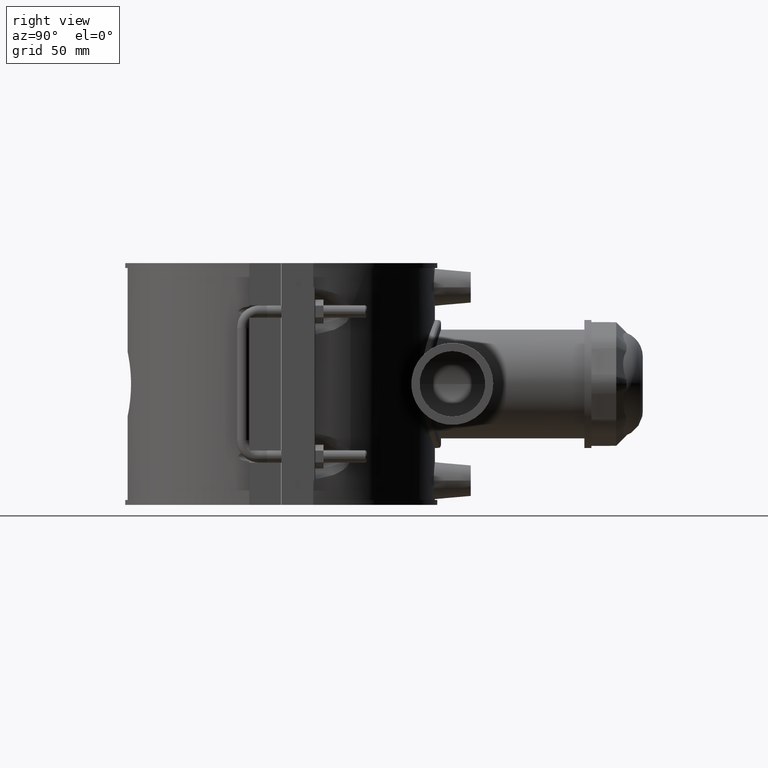
[diagram: clean part render]
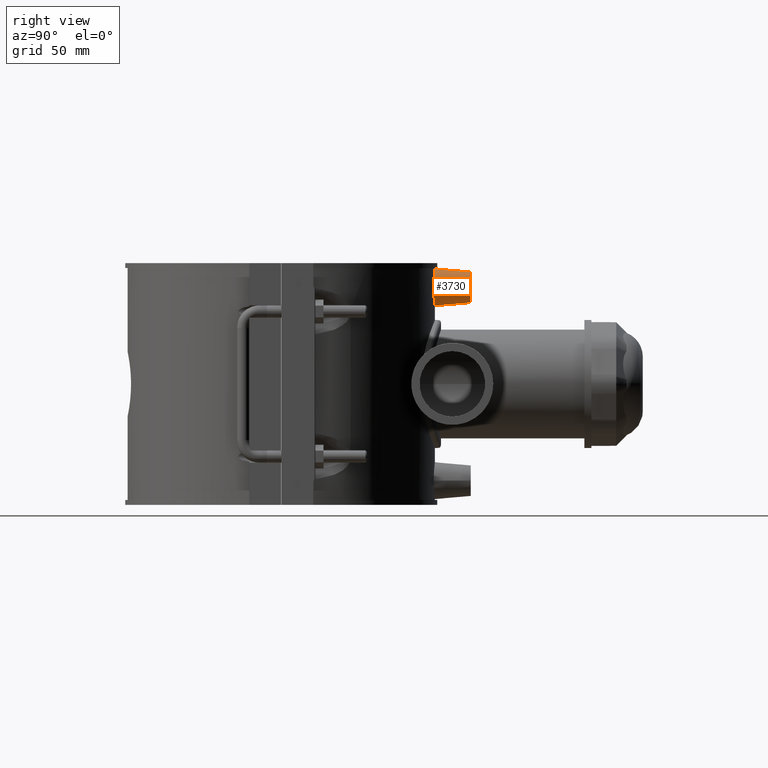
[diagram: same view with one face highlighted and labeled with its STEP entity id]
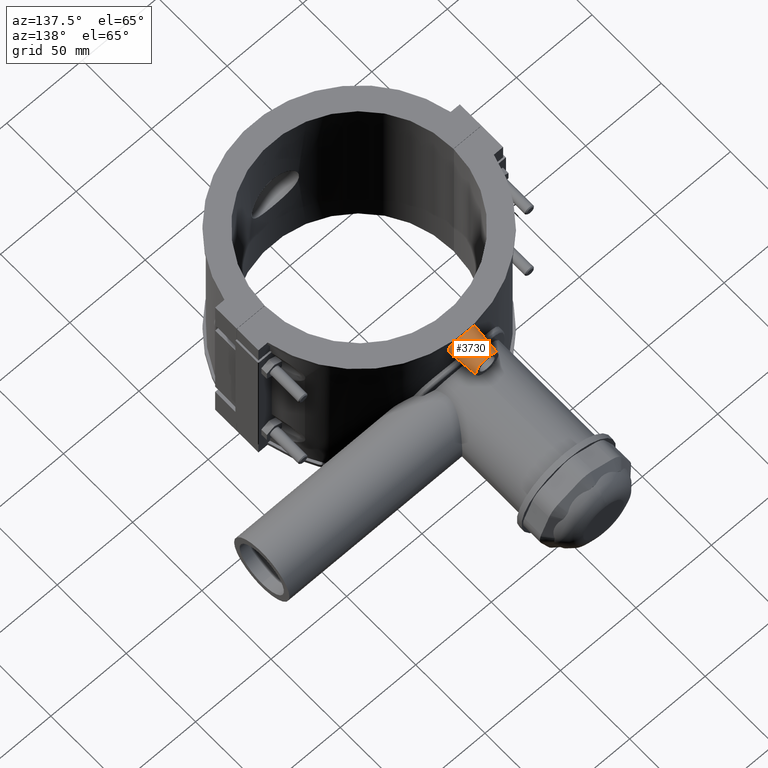
[diagram: same view with one face highlighted and labeled with its STEP entity id]
A machine part, right view. The second image highlights one B-rep face of the part: STEP entity #3730.
A second angle (auxiliary view) of the same face is appended — the face is thin or edge-on in the first view.
In plain terms, the highlighted conical surface has half-angle 5 deg.
Its self-contained STEP definition (entity closure, byte-faithful):
#651=CONICAL_SURFACE('',#4003,7.5,5.);
#849=CIRCLE('',#4004,7.5);
#927=FACE_BOUND('',#1323,.T.);
#1076=FACE_OUTER_BOUND('',#1322,.T.);
#1322=EDGE_LOOP('',(#3056));
#1323=EDGE_LOOP('',(#3057));
#1517=B_SPLINE_CURVE_WITH_KNOTS('',3,(#6679,#6680,#6681,#6682,#6683,#6684,
#6685,#6686,#6687,#6688,#6689,#6690,#6691,#6692,#6693,#6694,#6695,#6696,
#6697,#6698,#6699,#6700,#6701,#6702,#6703,#6704,#6705,#6706,#6707,#6708,
#6709,#6710,#6711,#6712),.UNSPECIFIED.,.T.,.F.,(4,2,2,2,2,2,2,2,2,2,2,2,
2,2,2,2,4),(0.,0.341668696491551,0.683337392983103,1.02458425500419,1.36583111702527,
1.70707797904636,2.04832484106744,2.38999353755899,2.73166223405054,3.0733309305421,
3.41499962703365,3.75624648905473,4.09749335107582,4.4387402130969,4.77998707511798,
5.12165577160954,5.46332446810109),.UNSPECIFIED.);
#1719=VERTEX_POINT('',#6678);
#1811=VERTEX_POINT('',#7374);
#2142=EDGE_CURVE('',#1719,#1719,#1517,.T.);
#2269=EDGE_CURVE('',#1811,#1811,#849,.T.);
#3056=ORIENTED_EDGE('',*,*,#2269,.F.);
#3057=ORIENTED_EDGE('',*,*,#2142,.F.);
#3730=ADVANCED_FACE('',(#1076,#927),#651,.T.);
#4003=AXIS2_PLACEMENT_3D('',#7373,#4694,#4695);
#4004=AXIS2_PLACEMENT_3D('',#7375,#4696,#4697);
#4694=DIRECTION('center_axis',(0.,-1.,0.));
#4695=DIRECTION('ref_axis',(1.,0.,0.));
#4696=DIRECTION('center_axis',(0.,1.,0.));
#4697=DIRECTION('ref_axis',(1.,0.,0.));
#6678=CARTESIAN_POINT('',(9.0793092533136,74.4484126323906,47.2));
#6679=CARTESIAN_POINT('Ctrl Pts',(-9.0793092533136,74.4484126323906,47.2));
#6680=CARTESIAN_POINT('Ctrl Pts',(-9.0793092533136,74.4484126323906,46.0611043450282));
#6681=CARTESIAN_POINT('Ctrl Pts',(-8.84946113589686,74.4775577133318,44.8478007545603));
#6682=CARTESIAN_POINT('Ctrl Pts',(-7.91818152844378,74.5823166978625,42.6193985559919));
#6683=CARTESIAN_POINT('Ctrl Pts',(-7.21684973308405,74.6563698188581,41.604185186368));
#6684=CARTESIAN_POINT('Ctrl Pts',(-5.60331245542121,74.7947708340694,40.0044126497905));
#6685=CARTESIAN_POINT('Ctrl Pts',(-4.58361091651927,74.8681481668674,39.3122964536791));
#6686=CARTESIAN_POINT('Ctrl Pts',(-2.35073887920452,74.9714820813101,38.3945491238737));
#6687=CARTESIAN_POINT('Ctrl Pts',(-1.13748954007028,75.,38.1689483882964));
#6688=CARTESIAN_POINT('Ctrl Pts',(1.13748954007028,75.,38.1689483882964));
#6689=CARTESIAN_POINT('Ctrl Pts',(2.35073887920452,74.9714820813101,38.3945491238737));
#6690=CARTESIAN_POINT('Ctrl Pts',(4.58361091651927,74.8681481668674,39.3122964536791));
#6691=CARTESIAN_POINT('Ctrl Pts',(5.60331245542121,74.7947708340694,40.0044126497905));
#6692=CARTESIAN_POINT('Ctrl Pts',(7.21684973308405,74.6563698188581,41.604185186368));
#6693=CARTESIAN_POINT('Ctrl Pts',(7.91818152844378,74.5823166978625,42.6193985559919));
#6694=CARTESIAN_POINT('Ctrl Pts',(8.84946113589686,74.4775577133318,44.8478007545603));
#6695=CARTESIAN_POINT('Ctrl Pts',(9.0793092533136,74.4484126323906,46.0611043450282));
#6696=CARTESIAN_POINT('Ctrl Pts',(9.0793092533136,74.4484126323906,48.3388956549719));
#6697=CARTESIAN_POINT('Ctrl Pts',(8.84946113589685,74.4775577133318,49.5521992454398));
#6698=CARTESIAN_POINT('Ctrl Pts',(7.91818152844378,74.5823166978625,51.7806014440082));
#6699=CARTESIAN_POINT('Ctrl Pts',(7.21684973308406,74.6563698188581,52.795814813632));
#6700=CARTESIAN_POINT('Ctrl Pts',(5.60331245542121,74.7947708340694,54.3955873502096));
#6701=CARTESIAN_POINT('Ctrl Pts',(4.58361091651926,74.8681481668674,55.0877035463209));
#6702=CARTESIAN_POINT('Ctrl Pts',(2.35073887920452,74.9714820813101,56.0054508761263));
#6703=CARTESIAN_POINT('Ctrl Pts',(1.13748954007028,75.,56.2310516117037));
#6704=CARTESIAN_POINT('Ctrl Pts',(-1.13748954007028,75.,56.2310516117037));
#6705=CARTESIAN_POINT('Ctrl Pts',(-2.35073887920452,74.9714820813101,56.0054508761263));
#6706=CARTESIAN_POINT('Ctrl Pts',(-4.58361091651927,74.8681481668674,55.0877035463209));
#6707=CARTESIAN_POINT('Ctrl Pts',(-5.60331245542121,74.7947708340694,54.3955873502096));
#6708=CARTESIAN_POINT('Ctrl Pts',(-7.21684973308406,74.6563698188581,52.795814813632));
#6709=CARTESIAN_POINT('Ctrl Pts',(-7.91818152844378,74.5823166978625,51.7806014440082));
#6710=CARTESIAN_POINT('Ctrl Pts',(-8.84946113589685,74.4775577133318,49.5521992454398));
#6711=CARTESIAN_POINT('Ctrl Pts',(-9.0793092533136,74.4484126323906,48.3388956549719));
#6712=CARTESIAN_POINT('Ctrl Pts',(-9.0793092533136,74.4484126323906,47.2));
#7373=CARTESIAN_POINT('Origin',(0.,92.5,47.2));
#7374=CARTESIAN_POINT('',(-7.5,92.5,47.2));
#7375=CARTESIAN_POINT('Origin',(0.,92.5,47.2));